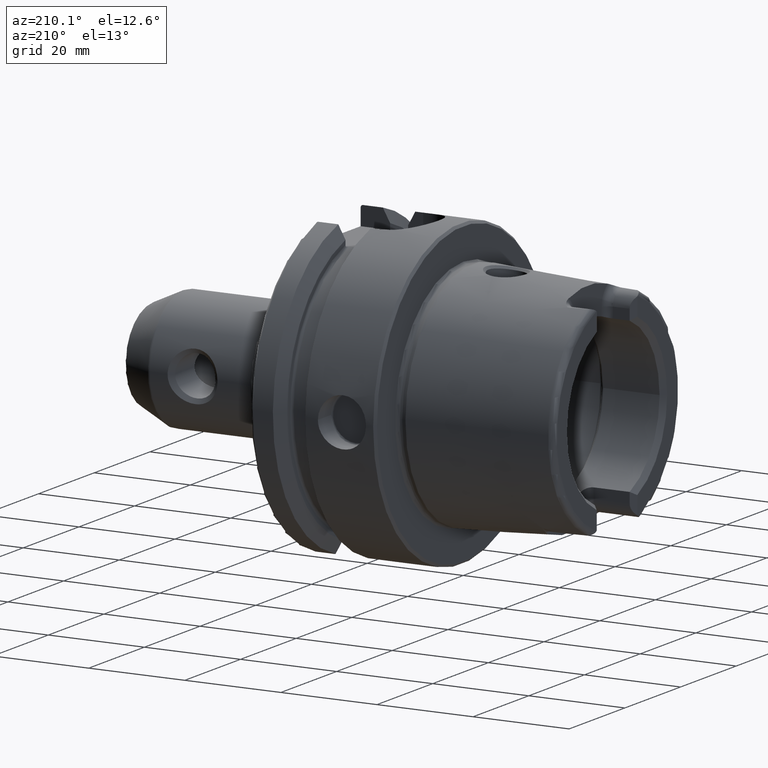
[diagram: clean part render]
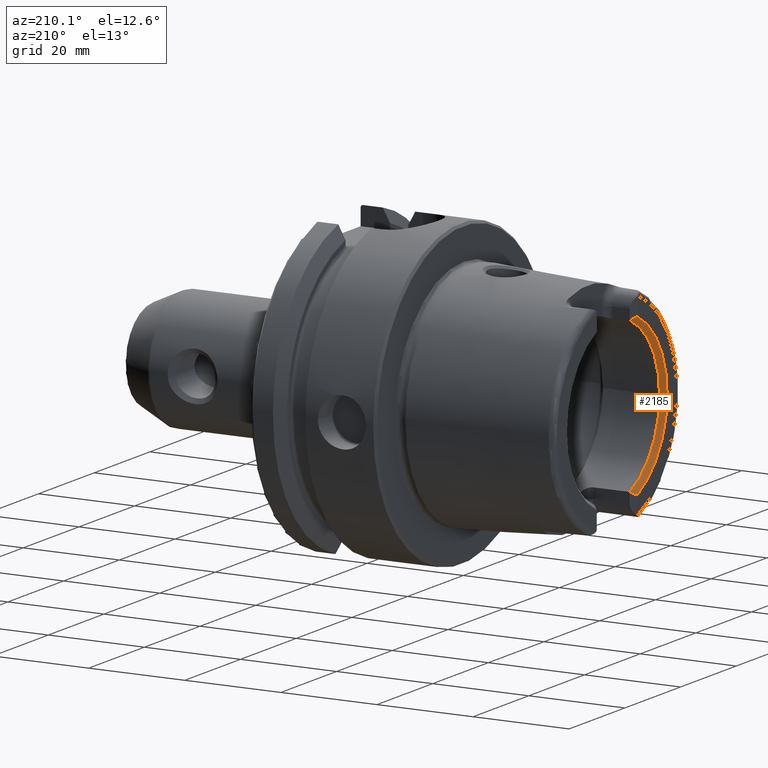
[diagram: same view with one face highlighted and labeled with its STEP entity id]
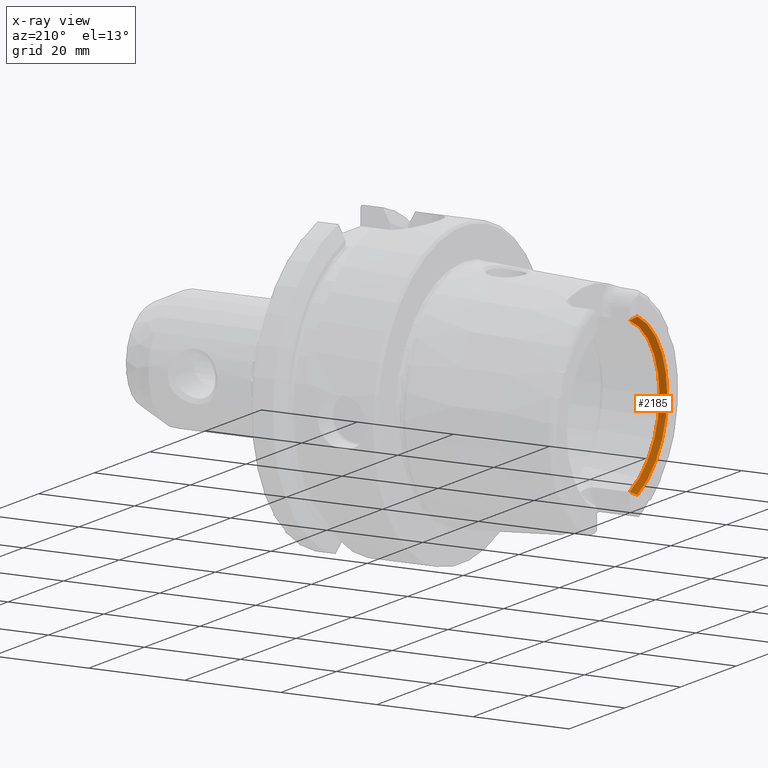
[diagram: x-ray of the same camera — body ghosted, the highlighted face saturated]
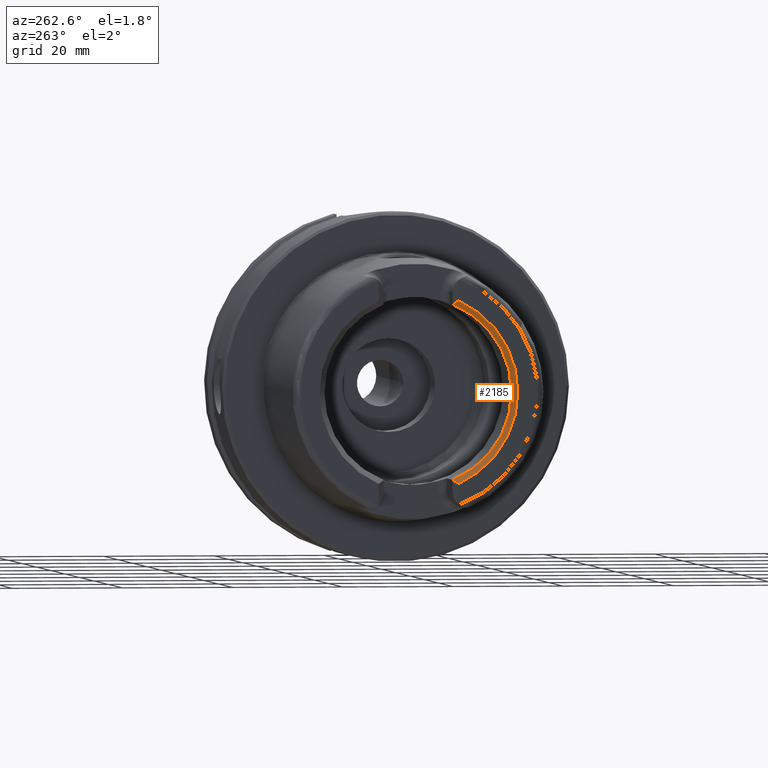
[diagram: same view with one face highlighted and labeled with its STEP entity id]
A machine part, auxiliary view. The second image highlights one B-rep face of the part: STEP entity #2185.
The next image is the same camera in x-ray: the body ghosted, the highlighted face saturated — about 0% of this face is hidden behind the body in this view.
A second angle (auxiliary view) of the same face is appended — the face is thin or edge-on in the first view.
In plain terms, the highlighted conical surface has half-angle 45 deg.
Its self-contained STEP definition (entity closure, byte-faithful):
#15=(
BOUNDED_CURVE()
B_SPLINE_CURVE(2,(#3454,#3455,#3456),.UNSPECIFIED.,.F.,.F.)
B_SPLINE_CURVE_WITH_KNOTS((3,3),(0.,0.156279744968252),.UNSPECIFIED.)
CURVE()
GEOMETRIC_REPRESENTATION_ITEM()
RATIONAL_B_SPLINE_CURVE((1.,1.,1.))
REPRESENTATION_ITEM('')
);
#17=(
BOUNDED_CURVE()
B_SPLINE_CURVE(2,(#3568,#3569,#3570),.UNSPECIFIED.,.F.,.F.)
B_SPLINE_CURVE_WITH_KNOTS((3,3),(0.,0.156279744968251),.UNSPECIFIED.)
CURVE()
GEOMETRIC_REPRESENTATION_ITEM()
RATIONAL_B_SPLINE_CURVE((1.,1.,1.))
REPRESENTATION_ITEM('')
);
#335=FACE_OUTER_BOUND('',#472,.T.);
#472=EDGE_LOOP('',(#1989,#1990,#1991,#1992,#1993));
#821=CIRCLE('',#2439,17.);
#823=CIRCLE('',#2441,17.);
#828=CIRCLE('',#2451,18.);
#896=VERTEX_POINT('',#3451);
#897=VERTEX_POINT('',#3453);
#918=VERTEX_POINT('',#3565);
#919=VERTEX_POINT('',#3567);
#1049=VERTEX_POINT('',#4748);
#1129=EDGE_CURVE('',#896,#897,#15,.T.);
#1155=EDGE_CURVE('',#918,#919,#17,.T.);
#1363=EDGE_CURVE('',#918,#1049,#821,.T.);
#1365=EDGE_CURVE('',#1049,#897,#823,.T.);
#1370=EDGE_CURVE('',#896,#919,#828,.T.);
#1989=ORIENTED_EDGE('',*,*,#1129,.F.);
#1990=ORIENTED_EDGE('',*,*,#1370,.T.);
#1991=ORIENTED_EDGE('',*,*,#1155,.F.);
#1992=ORIENTED_EDGE('',*,*,#1363,.T.);
#1993=ORIENTED_EDGE('',*,*,#1365,.T.);
#2073=CONICAL_SURFACE('',#2452,17.5,0.785398163397448);
#2185=ADVANCED_FACE('',(#335),#2073,.F.);
#2439=AXIS2_PLACEMENT_3D('',#4750,#3022,#3023);
#2441=AXIS2_PLACEMENT_3D('',#4752,#3026,#3027);
#2451=AXIS2_PLACEMENT_3D('',#4762,#3046,#3047);
#2452=AXIS2_PLACEMENT_3D('',#4763,#3048,#3049);
#3022=DIRECTION('center_axis',(1.,0.,0.));
#3023=DIRECTION('ref_axis',(0.,-1.,0.));
#3026=DIRECTION('center_axis',(1.,0.,0.));
#3027=DIRECTION('ref_axis',(0.,-1.,0.));
#3046=DIRECTION('center_axis',(-1.,0.,0.));
#3047=DIRECTION('ref_axis',(0.,-1.,0.));
#3048=DIRECTION('center_axis',(-1.,0.,0.));
#3049=DIRECTION('ref_axis',(0.,-1.,0.));
#3451=CARTESIAN_POINT('',(-32.,-7.27,-16.4665448713444));
#3453=CARTESIAN_POINT('',(-31.,-6.27,-15.8014904360317));
#3454=CARTESIAN_POINT('Ctrl Pts',(-32.,-7.27,-16.4665448713444));
#3455=CARTESIAN_POINT('Ctrl Pts',(-31.4896948415209,-6.75969484152091,-16.1340176536882));
#3456=CARTESIAN_POINT('Ctrl Pts',(-31.,-6.27,-15.8014904360317));
#3565=CARTESIAN_POINT('',(-31.,-6.27,15.8014904360317));
#3567=CARTESIAN_POINT('',(-32.,-7.26999999999999,16.4665448713444));
#3568=CARTESIAN_POINT('Ctrl Pts',(-31.,-6.27,15.8014904360317));
#3569=CARTESIAN_POINT('Ctrl Pts',(-31.489694841521,-6.75969484152099,16.1340176536882));
#3570=CARTESIAN_POINT('Ctrl Pts',(-32.,-7.26999999999999,16.4665448713444));
#4748=CARTESIAN_POINT('',(-31.,-17.,2.0818995585505E-15));
#4750=CARTESIAN_POINT('Origin',(-31.,0.,0.));
#4752=CARTESIAN_POINT('Origin',(-31.,0.,0.));
#4762=CARTESIAN_POINT('Origin',(-32.,0.,0.));
#4763=CARTESIAN_POINT('Origin',(-31.5,0.,0.));